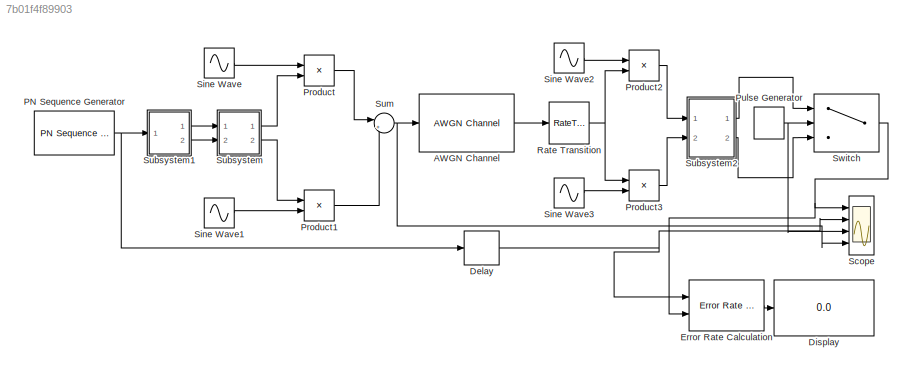
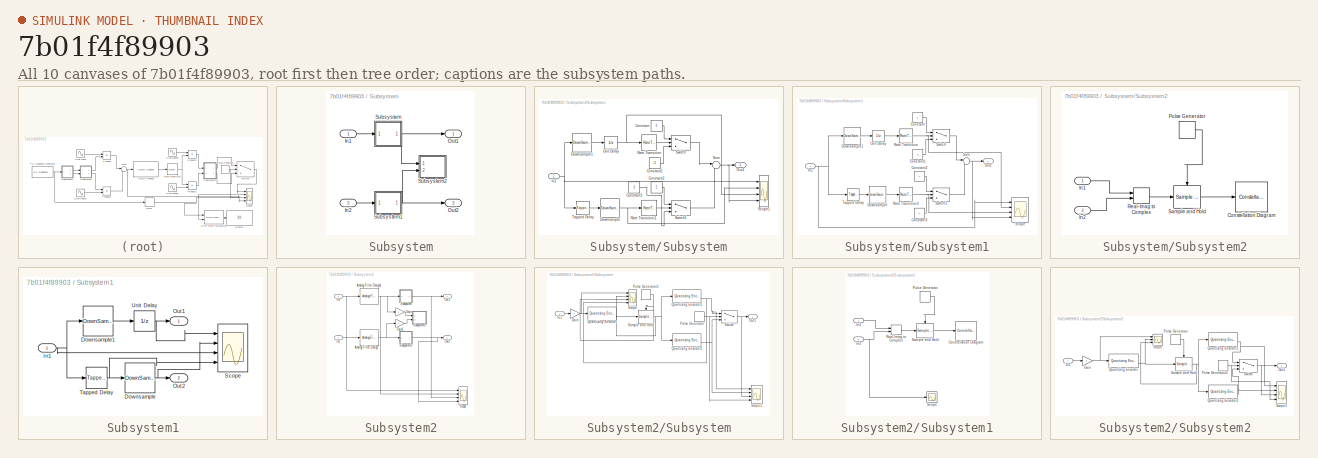
[diagram: thumbnail index - all 10 canvases of the model, root first then tree order]
MODEL slx_7b01f4f89903
KIND model
CONFIG AbsTol = auto
CONFIG FixedStep = auto
CONFIG MaxStep = auto
CONFIG MinStep = auto
CONFIG RelTol = 1e-3
CONFIG SampleTimeConstraint = Unconstrained
CONFIG Solver = VariableStepAuto
CONFIG SolverMode = Auto
CONFIG SolverName = VariableStepAuto
CONFIG StartTime = 0.0
CONFIG StopTime = 1
BLOCK [Reference] AWGN Channel  REF=commchan3/AWGN
Channel
  Ports = [1, 1]
  SourceBlock = commchan3/AWGN\nChannel
  SourceType = AWGN Channel
  UserDataPersistent = on
BLOCK [Delay] Delay
  DelayLength = 10
  InitialCondition = 0
  InputPortMap = u0
  Ports = [1, 1]
BLOCK [Display] Display
  Decimation = 1
  Ports = [1]
BLOCK [Reference] Error Rate Calculation  REF=commsink2/Error Rate
Calculation
  Ports = [2, 1]
  SourceBlock = commsink2/Error Rate\nCalculation
  SourceType = Error Rate Calculation
BLOCK [Reference] PN Sequence Generator  REF=commseqgen3/PN Sequence
Generator
  Ports = [0, 1]
  SourceBlock = commseqgen3/PN Sequence\nGenerator
  SourceType = PN Sequence Generator
BLOCK [Product] Product
  InputSameDT = off
  OutDataTypeStr = Inherit: Inherit via internal rule
  Ports = [2, 1]
  RndMeth = Floor
  SaturateOnIntegerOverflow = off
BLOCK [Product] Product1
  InputSameDT = off
  OutDataTypeStr = Inherit: Inherit via internal rule
  Ports = [2, 1]
  RndMeth = Floor
  SaturateOnIntegerOverflow = off
BLOCK [Product] Product2
  InputSameDT = off
  OutDataTypeStr = Inherit: Inherit via internal rule
  Ports = [2, 1]
  RndMeth = Floor
  SaturateOnIntegerOverflow = off
BLOCK [Product] Product3
  InputSameDT = off
  OutDataTypeStr = Inherit: Inherit via internal rule
  Ports = [2, 1]
  RndMeth = Floor
  SaturateOnIntegerOverflow = off
BLOCK [DiscretePulseGenerator] Pulse Generator
  Period = 10
  Ports = [0, 1]
  PulseWidth = 5
  SampleTime = 1/5000
BLOCK [RateTransition] Rate Transition
  OutPortSampleTime = 1/1000
  OutPortSampleTimeOpt = Multiple of input port sample time
BLOCK [Scope] Scope
  NumInputPorts = 4
  Ports = [4]
  ScopeSpecificationString = Simulink.scopes.TimeScopeBlockCfg('CurrentConfiguration', extmgr.ConfigurationSet(extmgr.Configuration('Core','General UI',true),extmgr.Configuration('Core','Source UI',true),extmgr.Configuration('Sources','WiredSimulink',true),extmgr.Configuration('Visuals','Time Domain',true,'SerializedDisplays',{struct('MinYLimReal','-0.125','MaxYLimReal','1.125','YLabelReal','','MinYLimMag','0.00000','MaxYLimM...<+3415ch>
BLOCK [Sin] Sine Wave
  Frequency = 5000*2*pi
  Phase = pi/2
  Ports = [0, 1]
  SampleTime = 1/50000
BLOCK [Sin] Sine Wave1
  Frequency = 10000*pi
  Ports = [0, 1]
  SampleTime = 1/50000
BLOCK [Sin] Sine Wave2
  Frequency = 5000*2*pi
  Phase = pi/2
  Ports = [0, 1]
  SampleTime = 1/50000
BLOCK [Sin] Sine Wave3
  Frequency = 5000*2*pi
  Ports = [0, 1]
  SampleTime = 1/50000
BLOCK [SubSystem] Subsystem
  Ports = [2, 2]
  RequestExecContextInheritance = off
  Variant = off
BLOCK [Inport] Subsystem/In1
  IconDisplay = Port number
BLOCK [Inport] Subsystem/In2
  IconDisplay = Port number
  Port = 2
BLOCK [Outport] Subsystem/Out1
  IconDisplay = Port number
BLOCK [Outport] Subsystem/Out2
  IconDisplay = Port number
  Port = 2
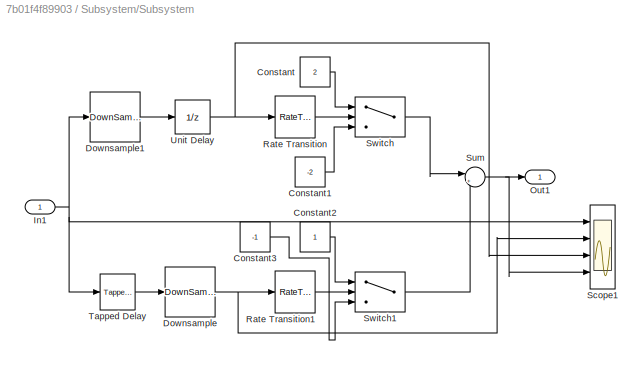
BLOCK [SubSystem] Subsystem/Subsystem
  Ports = [1, 1]
  RequestExecContextInheritance = off
  Variant = off
BLOCK [Constant] Subsystem/Subsystem/Constant
  Value = 2
BLOCK [Constant] Subsystem/Subsystem/Constant1
  Value = -2
BLOCK [Constant] Subsystem/Subsystem/Constant2
BLOCK [Constant] Subsystem/Subsystem/Constant3
  Value = -1
BLOCK [DownSample] Subsystem/Subsystem/Downsample
  InputProcessing = Elements as channels (sample based)
BLOCK [DownSample] Subsystem/Subsystem/Downsample1
  InputProcessing = Elements as channels (sample based)
BLOCK [Inport] Subsystem/Subsystem/In1
  IconDisplay = Port number
BLOCK [Outport] Subsystem/Subsystem/Out1
  IconDisplay = Port number
BLOCK [RateTransition] Subsystem/Subsystem/Rate Transition
  OutPortSampleTimeOpt = Multiple of input port sample time
BLOCK [RateTransition] Subsystem/Subsystem/Rate Transition1
  OutPortSampleTimeOpt = Multiple of input port sample time
BLOCK [Scope] Subsystem/Subsystem/Scope1
  NumInputPorts = 4
  Ports = [4]
  ScopeSpecificationString = Simulink.scopes.TimeScopeBlockCfg('CurrentConfiguration', extmgr.ConfigurationSet(extmgr.Configuration('Core','General UI',true),extmgr.Configuration('Core','Source UI',true),extmgr.Configuration('Sources','WiredSimulink',true,'DataLoggingVariableName','ScopeData5'),extmgr.Configuration('Visuals','Time Domain',true,'SerializedDisplays',{struct('MinYLimReal','-0.125','MaxYLimReal','1.125','YLabelRe...<+3466ch>
BLOCK [Sum] Subsystem/Subsystem/Sum
  IconShape = round
  InputSameDT = off
  Inputs = |++
  OutDataTypeStr = Inherit: Inherit via internal rule
  Ports = [2, 1]
  SaturateOnIntegerOverflow = off
BLOCK [Switch] Subsystem/Subsystem/Switch
  Criteria = u2 > Threshold
  InputSameDT = off
  SaturateOnIntegerOverflow = off
BLOCK [Switch] Subsystem/Subsystem/Switch1
  Criteria = u2 > Threshold
  InputSameDT = off
  SaturateOnIntegerOverflow = off
BLOCK [Reference] Subsystem/Subsystem/Tapped Delay  REF=simulink/Discrete/Tapped Delay
  Ports = [1, 1]
  SourceBlock = simulink/Discrete/Tapped Delay
  SourceType = Tapped Delay Line
BLOCK [UnitDelay] Subsystem/Subsystem/Unit Delay
  InputProcessing = Elements as channels (sample based)
  SampleTime = 1/250
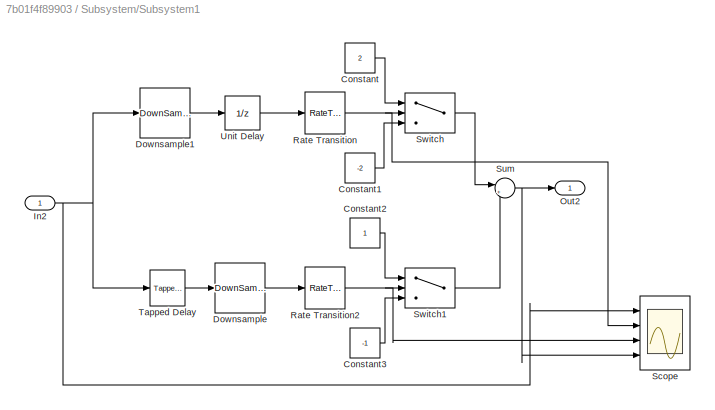
BLOCK [SubSystem] Subsystem/Subsystem1
  Ports = [1, 1]
  RequestExecContextInheritance = off
  Variant = off
BLOCK [Constant] Subsystem/Subsystem1/Constant
  Value = 2
BLOCK [Constant] Subsystem/Subsystem1/Constant1
  Value = -2
BLOCK [Constant] Subsystem/Subsystem1/Constant2
BLOCK [Constant] Subsystem/Subsystem1/Constant3
  Value = -1
BLOCK [DownSample] Subsystem/Subsystem1/Downsample
  InputProcessing = Elements as channels (sample based)
BLOCK [DownSample] Subsystem/Subsystem1/Downsample1
  InputProcessing = Elements as channels (sample based)
BLOCK [Inport] Subsystem/Subsystem1/In2
  IconDisplay = Port number
BLOCK [Outport] Subsystem/Subsystem1/Out2
  IconDisplay = Port number
BLOCK [RateTransition] Subsystem/Subsystem1/Rate Transition
  OutPortSampleTimeOpt = Multiple of input port sample time
BLOCK [RateTransition] Subsystem/Subsystem1/Rate Transition2
  OutPortSampleTimeOpt = Multiple of input port sample time
BLOCK [Scope] Subsystem/Subsystem1/Scope
  NumInputPorts = 4
  Ports = [4]
  ScopeSpecificationString = Simulink.scopes.TimeScopeBlockCfg('CurrentConfiguration', extmgr.ConfigurationSet(extmgr.Configuration('Core','General UI',true),extmgr.Configuration('Core','Source UI',true),extmgr.Configuration('Sources','WiredSimulink',true,'DataLoggingVariableName','ScopeData1'),extmgr.Configuration('Visuals','Time Domain',true,'SerializedDisplays',{struct('MinYLimReal','-0.125','MaxYLimReal','1.125','YLabelRe...<+3449ch>
BLOCK [Sum] Subsystem/Subsystem1/Sum
  IconShape = round
  InputSameDT = off
  Inputs = |++
  OutDataTypeStr = Inherit: Inherit via internal rule
  Ports = [2, 1]
  SaturateOnIntegerOverflow = off
BLOCK [Switch] Subsystem/Subsystem1/Switch
  Criteria = u2 > Threshold
  InputSameDT = off
  SaturateOnIntegerOverflow = off
BLOCK [Switch] Subsystem/Subsystem1/Switch1
  Criteria = u2 > Threshold
  InputSameDT = off
  SaturateOnIntegerOverflow = off
BLOCK [Reference] Subsystem/Subsystem1/Tapped Delay  REF=simulink/Discrete/Tapped Delay
  Ports = [1, 1]
  SourceBlock = simulink/Discrete/Tapped Delay
  SourceType = Tapped Delay Line
BLOCK [UnitDelay] Subsystem/Subsystem1/Unit Delay
  InputProcessing = Elements as channels (sample based)
  SampleTime = 1/250
BLOCK [SubSystem] Subsystem/Subsystem2
  Ports = [2]
  RequestExecContextInheritance = off
  Variant = off
BLOCK [ConstellationDiagram] Subsystem/Subsystem2/Constellation Diagram
  Ports = [1]
  ScopeSpecificationString = comm.scopes.ConstellationDiagramBlockCfg('CurrentConfiguration', extmgr.ConfigurationSet(extmgr.Configuration('Core','General UI',true),extmgr.Configuration('Core','Source UI',true),extmgr.Configuration('Sources','WiredSimulink',true),extmgr.Configuration('Sources','Simulink',false),extmgr.Configuration('Sources','SimulinkEvent',false),extmgr.Configuration('Sources','File',false),extmgr.Configurat...<+2596ch>
BLOCK [Inport] Subsystem/Subsystem2/In1
  IconDisplay = Port number
BLOCK [Inport] Subsystem/Subsystem2/In2
  IconDisplay = Port number
  Port = 2
BLOCK [DiscretePulseGenerator] Subsystem/Subsystem2/Pulse Generator
  Period = 10
  Ports = [0, 1]
  PulseWidth = 5
  SampleTime = 1/5000
BLOCK [RealImagToComplex] Subsystem/Subsystem2/Real-Imag to Complex
  Ports = [2, 1]
BLOCK [Reference] Subsystem/Subsystem2/Sample and Hold  REF=dspsigops/Sample
and Hold
  Ports = [1, 1, 0, 1]
  SourceBlock = dspsigops/Sample\nand Hold
  SourceType = Sample and Hold
BLOCK [SubSystem] Subsystem1
  Ports = [1, 2]
  RequestExecContextInheritance = off
  Variant = off
BLOCK [DownSample] Subsystem1/Downsample
  InputProcessing = Elements as channels (sample based)
BLOCK [DownSample] Subsystem1/Downsample1
  InputProcessing = Elements as channels (sample based)
  RateOptions = Allow multirate processing
BLOCK [Inport] Subsystem1/In1
  IconDisplay = Port number
BLOCK [Outport] Subsystem1/Out1
  IconDisplay = Port number
BLOCK [Outport] Subsystem1/Out2
  IconDisplay = Port number
  Port = 2
BLOCK [Scope] Subsystem1/Scope
  NumInputPorts = 4
  Ports = [4]
  ScopeSpecificationString = Simulink.scopes.TimeScopeBlockCfg('CurrentConfiguration', extmgr.ConfigurationSet(extmgr.Configuration('Core','General UI',true),extmgr.Configuration('Core','Source UI',true),extmgr.Configuration('Sources','WiredSimulink',true,'DataLoggingVariableName','ScopeData3'),extmgr.Configuration('Visuals','Time Domain',true,'SerializedDisplays',{struct('MinYLimReal','-0.125','MaxYLimReal','1.125','YLabelRe...<+3477ch>
BLOCK [Reference] Subsystem1/Tapped Delay  REF=simulink/Discrete/Tapped Delay
  Ports = [1, 1]
  SourceBlock = simulink/Discrete/Tapped Delay
  SourceType = Tapped Delay Line
BLOCK [UnitDelay] Subsystem1/Unit Delay
  InputProcessing = Elements as channels (sample based)
  SampleTime = 1/500
BLOCK [SubSystem] Subsystem2
  Ports = [2, 2]
  RequestExecContextInheritance = off
  Variant = off
BLOCK [Reference] Subsystem2/Analog Filter Design  REF=dsparch4/Analog
Filter Design
  Ports = [1, 1]
  SourceBlock = dsparch4/Analog\nFilter Design
  SourceType = Analog Filter Design
BLOCK [Reference] Subsystem2/Analog Filter Design1  REF=dsparch4/Analog
Filter Design
  Ports = [1, 1]
  SourceBlock = dsparch4/Analog\nFilter Design
  SourceType = Analog Filter Design
BLOCK [Gain] Subsystem2/Gain
  Gain = 2
  OutDataTypeStr = Inherit: Inherit via internal rule
  ParamDataTypeStr = Inherit: Inherit via internal rule
  SaturateOnIntegerOverflow = off
BLOCK [Gain] Subsystem2/Gain1
  Gain = 2
  OutDataTypeStr = Inherit: Inherit via internal rule
  ParamDataTypeStr = Inherit: Inherit via internal rule
  SaturateOnIntegerOverflow = off
BLOCK [Inport] Subsystem2/In1
  IconDisplay = Port number
BLOCK [Inport] Subsystem2/In2
  IconDisplay = Port number
  Port = 2
BLOCK [Outport] Subsystem2/Out1
  IconDisplay = Port number
BLOCK [Outport] Subsystem2/Out2
  IconDisplay = Port number
  Port = 2
BLOCK [Scope] Subsystem2/Scope
  NumInputPorts = 4
  Ports = [4]
  ScopeSpecificationString = Simulink.scopes.TimeScopeBlockCfg('CurrentConfiguration', extmgr.ConfigurationSet(extmgr.Configuration('Core','General UI',true),extmgr.Configuration('Core','Source UI',true),extmgr.Configuration('Sources','WiredSimulink',true,'DataLoggingVariableName','ScopeData5'),extmgr.Configuration('Visuals','Time Domain',true,'SerializedDisplays',{struct('MinYLimReal','-5.89974','MaxYLimReal','5.69351','YLab...<+3541ch>
BLOCK [SubSystem] Subsystem2/Subsystem
  Ports = [1, 1]
  RequestExecContextInheritance = off
  Variant = off
BLOCK [Gain] Subsystem2/Subsystem/Gain
  Gain = 2
  OutDataTypeStr = Inherit: Inherit via internal rule
  ParamDataTypeStr = Inherit: Inherit via internal rule
  SaturateOnIntegerOverflow = off
BLOCK [Inport] Subsystem2/Subsystem/In1
  IconDisplay = Port number
BLOCK [Outport] Subsystem2/Subsystem/Out1
  IconDisplay = Port number
BLOCK [DiscretePulseGenerator] Subsystem2/Subsystem/Pulse Generator
  Period = 10
  Ports = [0, 1]
  PulseWidth = 5
  SampleTime = 1/2500
BLOCK [DiscretePulseGenerator] Subsystem2/Subsystem/Pulse Generator1
  Period = 10
  Ports = [0, 1]
  PulseWidth = 5
  SampleTime = 1/2500
BLOCK [Reference] Subsystem2/Subsystem/Quantizing Encoder  REF=commsrccod2/Quantizing
Encoder
  Ports = [1, 2]
  SourceBlock = commsrccod2/Quantizing\nEncoder
  SourceType = Quantizing Encoder
BLOCK [Reference] Subsystem2/Subsystem/Quantizing Encoder1  REF=commsrccod2/Quantizing
Encoder
  Ports = [1, 2]
  SourceBlock = commsrccod2/Quantizing\nEncoder
  SourceType = Quantizing Encoder
BLOCK [Reference] Subsystem2/Subsystem/Quantizing Encoder2  REF=commsrccod2/Quantizing
Encoder
  Ports = [1, 2]
  SourceBlock = commsrccod2/Quantizing\nEncoder
  SourceType = Quantizing Encoder
BLOCK [Reference] Subsystem2/Subsystem/Sample and Hold  REF=dspsigops/Sample
and Hold
  Ports = [1, 1, 0, 1]
  SourceBlock = dspsigops/Sample\nand Hold
  SourceType = Sample and Hold
BLOCK [Scope] Subsystem2/Subsystem/Scope
  NumInputPorts = 4
  Ports = [4]
  ScopeSpecificationString = Simulink.scopes.TimeScopeBlockCfg('CurrentConfiguration', extmgr.ConfigurationSet(extmgr.Configuration('Core','General UI',true),extmgr.Configuration('Core','Source UI',true),extmgr.Configuration('Sources','WiredSimulink',true,'DataLoggingVariableName','ScopeData2'),extmgr.Configuration('Visuals','Time Domain',true,'SerializedDisplays',{struct('MinYLimReal','-4.22221','MaxYLimReal','4.31947','YLab...<+3508ch>
BLOCK [Scope] Subsystem2/Subsystem/Scope1
  NumInputPorts = 4
  Ports = [4]
  ScopeSpecificationString = Simulink.scopes.TimeScopeBlockCfg('CurrentConfiguration', extmgr.ConfigurationSet(extmgr.Configuration('Core','General UI',true),extmgr.Configuration('Core','Source UI',true),extmgr.Configuration('Sources','WiredSimulink',true,'DataLoggingVariableName','ScopeData2'),extmgr.Configuration('Visuals','Time Domain',true,'SerializedDisplays',{struct('MinYLimReal','-0.125','MaxYLimReal','1.125','YLabelRe...<+3434ch>
BLOCK [Switch] Subsystem2/Subsystem/Switch
  Criteria = u2 > Threshold
  InputSameDT = off
  OutDataTypeStr = double
  SaturateOnIntegerOverflow = off
BLOCK [SubSystem] Subsystem2/Subsystem1
  Ports = [2]
  RequestExecContextInheritance = off
  Variant = off
BLOCK [ConstellationDiagram] Subsystem2/Subsystem1/Constellation Diagram
  Ports = [1]
  ScopeSpecificationString = comm.scopes.ConstellationDiagramBlockCfg('CurrentConfiguration', extmgr.ConfigurationSet(extmgr.Configuration('Core','General UI',true),extmgr.Configuration('Core','Source UI',true),extmgr.Configuration('Sources','WiredSimulink',true),extmgr.Configuration('Sources','Simulink',false),extmgr.Configuration('Sources','SimulinkEvent',false),extmgr.Configuration('Sources','File',false),extmgr.Configurat...<+2596ch>
BLOCK [Inport] Subsystem2/Subsystem1/In1
  IconDisplay = Port number
BLOCK [Inport] Subsystem2/Subsystem1/In2
  IconDisplay = Port number
  Port = 2
BLOCK [DiscretePulseGenerator] Subsystem2/Subsystem1/Pulse Generator
  Period = 10
  Ports = [0, 1]
  PulseWidth = 5
  SampleTime = 1/5000
BLOCK [RealImagToComplex] Subsystem2/Subsystem1/Real-Imag to Complex
  Ports = [2, 1]
BLOCK [Reference] Subsystem2/Subsystem1/Sample and Hold  REF=dspsigops/Sample
and Hold
  Ports = [1, 1, 0, 1]
  SourceBlock = dspsigops/Sample\nand Hold
  SourceType = Sample and Hold
BLOCK [Scope] Subsystem2/Subsystem1/Scope
  Ports = [1]
  ScopeSpecificationString = Simulink.scopes.TimeScopeBlockCfg('CurrentConfiguration', extmgr.ConfigurationSet(extmgr.Configuration('Core','General UI',true),extmgr.Configuration('Core','Source UI',true),extmgr.Configuration('Sources','WiredSimulink',true,'DataLoggingVariableName','ScopeData6'),extmgr.Configuration('Visuals','Time Domain',true,'SerializedDisplays',{struct('MinYLimReal','-2.17529','MaxYLimReal','2.18586','YLab...<+1381ch>
BLOCK [SubSystem] Subsystem2/Subsystem2
  Ports = [1, 1]
  RequestExecContextInheritance = off
  Variant = off
BLOCK [Gain] Subsystem2/Subsystem2/Gain
  Gain = 2
  OutDataTypeStr = Inherit: Inherit via internal rule
  ParamDataTypeStr = Inherit: Inherit via internal rule
  SaturateOnIntegerOverflow = off
BLOCK [Inport] Subsystem2/Subsystem2/In1
  IconDisplay = Port number
BLOCK [Outport] Subsystem2/Subsystem2/Out1
  IconDisplay = Port number
BLOCK [DiscretePulseGenerator] Subsystem2/Subsystem2/Pulse Generator
  Period = 10
  Ports = [0, 1]
  PulseWidth = 5
  SampleTime = 1/2500
BLOCK [DiscretePulseGenerator] Subsystem2/Subsystem2/Pulse Generator1
  Period = 10
  Ports = [0, 1]
  PulseWidth = 5
  SampleTime = 1/2500
BLOCK [Reference] Subsystem2/Subsystem2/Quantizing Encoder  REF=commsrccod2/Quantizing
Encoder
  Ports = [1, 2]
  SourceBlock = commsrccod2/Quantizing\nEncoder
  SourceType = Quantizing Encoder
BLOCK [Reference] Subsystem2/Subsystem2/Quantizing Encoder1  REF=commsrccod2/Quantizing
Encoder
  Ports = [1, 2]
  SourceBlock = commsrccod2/Quantizing\nEncoder
  SourceType = Quantizing Encoder
BLOCK [Reference] Subsystem2/Subsystem2/Quantizing Encoder2  REF=commsrccod2/Quantizing
Encoder
  Ports = [1, 2]
  SourceBlock = commsrccod2/Quantizing\nEncoder
  SourceType = Quantizing Encoder
BLOCK [Reference] Subsystem2/Subsystem2/Sample and Hold  REF=dspsigops/Sample
and Hold
  Ports = [1, 1, 0, 1]
  SourceBlock = dspsigops/Sample\nand Hold
  SourceType = Sample and Hold
BLOCK [Scope] Subsystem2/Subsystem2/Scope
  NumInputPorts = 3
  Ports = [3]
  ScopeSpecificationString = Simulink.scopes.TimeScopeBlockCfg('CurrentConfiguration', extmgr.ConfigurationSet(extmgr.Configuration('Core','General UI',true),extmgr.Configuration('Core','Source UI',true),extmgr.Configuration('Sources','WiredSimulink',true,'DataLoggingVariableName','ScopeData3'),extmgr.Configuration('Visuals','Time Domain',true,'SerializedDisplays',{struct('MinYLimReal','-4.35196','MaxYLimReal','4.38416','YLab...<+2701ch>
BLOCK [Scope] Subsystem2/Subsystem2/Scope1
  NumInputPorts = 4
  Ports = [4]
  ScopeSpecificationString = Simulink.scopes.TimeScopeBlockCfg('CurrentConfiguration', extmgr.ConfigurationSet(extmgr.Configuration('Core','General UI',true),extmgr.Configuration('Core','Source UI',true),extmgr.Configuration('Sources','WiredSimulink',true,'DataLoggingVariableName','ScopeData4'),extmgr.Configuration('Visuals','Time Domain',true,'SerializedDisplays',{struct('MinYLimReal','-0.125','MaxYLimReal','1.125','YLabelRe...<+3437ch>
BLOCK [Switch] Subsystem2/Subsystem2/Switch
  Criteria = u2 > Threshold
  InputSameDT = off
  SaturateOnIntegerOverflow = off
BLOCK [Sum] Sum
  AccumDataTypeStr = double
  IconShape = round
  InputSameDT = off
  Inputs = |++
  OutDataTypeStr = double
  Ports = [2, 1]
  SaturateOnIntegerOverflow = off
BLOCK [Switch] Switch
  InputSameDT = off
  SaturateOnIntegerOverflow = off
  Threshold = 0.5
LINE AWGN Channel:1 -> Rate Transition:1
NET Delay:1 -> Error Rate Calculation:1, Scope:2
LINE Error Rate Calculation:1 -> Display:1
NET PN Sequence Generator:1 -> Delay:1, Subsystem1:1
LINE Product1:1 -> Sum:2
LINE Product2:1 -> Subsystem2:1
LINE Product3:1 -> Subsystem2:2
LINE Product:1 -> Sum:1
NET Pulse Generator:1 -> Scope:3, Switch:2
NET Rate Transition:1 -> Product2:2, Product3:1
LINE Sine Wave1:1 -> Product1:2
LINE Sine Wave2:1 -> Product2:1
LINE Sine Wave3:1 -> Product3:2
LINE Sine Wave:1 -> Product:1
LINE Subsystem/In1:1 -> Subsystem/Subsystem:1
LINE Subsystem/In2:1 -> Subsystem/Subsystem1:1
LINE Subsystem/Subsystem/Constant1:1 -> Subsystem/Subsystem/Switch:3
LINE Subsystem/Subsystem/Constant2:1 -> Subsystem/Subsystem/Switch1:1
LINE Subsystem/Subsystem/Constant3:1 -> Subsystem/Subsystem/Switch1:3
LINE Subsystem/Subsystem/Constant:1 -> Subsystem/Subsystem/Switch:1
LINE Subsystem/Subsystem/Downsample1:1 -> Subsystem/Subsystem/Unit Delay:1
NET Subsystem/Subsystem/Downsample:1 -> Subsystem/Subsystem/Rate Transition1:1, Subsystem/Subsystem/Scope1:2
NET Subsystem/Subsystem/In1:1 -> Subsystem/Subsystem/Downsample1:1, Subsystem/Subsystem/Scope1:1, Subsystem/Subsystem/Tapped Delay:1
LINE Subsystem/Subsystem/Rate Transition1:1 -> Subsystem/Subsystem/Switch1:2
LINE Subsystem/Subsystem/Rate Transition:1 -> Subsystem/Subsystem/Switch:2
NET Subsystem/Subsystem/Sum:1 -> Subsystem/Subsystem/Out1:1, Subsystem/Subsystem/Scope1:4
LINE Subsystem/Subsystem/Switch1:1 -> Subsystem/Subsystem/Sum:2
LINE Subsystem/Subsystem/Switch:1 -> Subsystem/Subsystem/Sum:1
LINE Subsystem/Subsystem/Tapped Delay:1 -> Subsystem/Subsystem/Downsample:1
NET Subsystem/Subsystem/Unit Delay:1 -> Subsystem/Subsystem/Rate Transition:1, Subsystem/Subsystem/Scope1:3
LINE Subsystem/Subsystem1/Constant1:1 -> Subsystem/Subsystem1/Switch:3
LINE Subsystem/Subsystem1/Constant2:1 -> Subsystem/Subsystem1/Switch1:1
LINE Subsystem/Subsystem1/Constant3:1 -> Subsystem/Subsystem1/Switch1:3
LINE Subsystem/Subsystem1/Constant:1 -> Subsystem/Subsystem1/Switch:1
LINE Subsystem/Subsystem1/Downsample1:1 -> Subsystem/Subsystem1/Unit Delay:1
LINE Subsystem/Subsystem1/Downsample:1 -> Subsystem/Subsystem1/Rate Transition2:1
NET Subsystem/Subsystem1/In2:1 -> Subsystem/Subsystem1/Downsample1:1, Subsystem/Subsystem1/Scope:1, Subsystem/Subsystem1/Tapped Delay:1
NET Subsystem/Subsystem1/Rate Transition2:1 -> Subsystem/Subsystem1/Scope:3, Subsystem/Subsystem1/Switch1:2
NET Subsystem/Subsystem1/Rate Transition:1 -> Subsystem/Subsystem1/Scope:2, Subsystem/Subsystem1/Switch:2
NET Subsystem/Subsystem1/Sum:1 -> Subsystem/Subsystem1/Out2:1, Subsystem/Subsystem1/Scope:4
LINE Subsystem/Subsystem1/Switch1:1 -> Subsystem/Subsystem1/Sum:2
LINE Subsystem/Subsystem1/Switch:1 -> Subsystem/Subsystem1/Sum:1
LINE Subsystem/Subsystem1/Tapped Delay:1 -> Subsystem/Subsystem1/Downsample:1
LINE Subsystem/Subsystem1/Unit Delay:1 -> Subsystem/Subsystem1/Rate Transition:1
NET Subsystem/Subsystem1:1 -> Subsystem/Out2:1, Subsystem/Subsystem2:2
LINE Subsystem/Subsystem2/In1:1 -> Subsystem/Subsystem2/Real-Imag to Complex:1
LINE Subsystem/Subsystem2/In2:1 -> Subsystem/Subsystem2/Real-Imag to Complex:2
LINE Subsystem/Subsystem2/Pulse Generator:1 -> Subsystem/Subsystem2/Sample and Hold:trigger
LINE Subsystem/Subsystem2/Real-Imag to Complex:1 -> Subsystem/Subsystem2/Sample and Hold:1
LINE Subsystem/Subsystem2/Sample and Hold:1 -> Subsystem/Subsystem2/Constellation Diagram:1
NET Subsystem/Subsystem:1 -> Subsystem/Out1:1, Subsystem/Subsystem2:1
LINE Subsystem1/Downsample1:1 -> Subsystem1/Unit Delay:1
NET Subsystem1/Downsample:1 -> Subsystem1/Out2:1, Subsystem1/Scope:2
NET Subsystem1/In1:1 -> Subsystem1/Downsample1:1, Subsystem1/Scope:3, Subsystem1/Tapped Delay:1
NET Subsystem1/Tapped Delay:1 -> Subsystem1/Downsample:1, Subsystem1/Scope:4
NET Subsystem1/Unit Delay:1 -> Subsystem1/Out1:1, Subsystem1/Scope:1
LINE Subsystem1:1 -> Subsystem:1
LINE Subsystem1:2 -> Subsystem:2
NET Subsystem2/Analog Filter Design1:1 -> Subsystem2/Gain:1, Subsystem2/Scope:2, Subsystem2/Subsystem:1
NET Subsystem2/Analog Filter Design:1 -> Subsystem2/Gain1:1, Subsystem2/Subsystem2:1
LINE Subsystem2/Gain1:1 -> Subsystem2/Subsystem1:2
LINE Subsystem2/Gain:1 -> Subsystem2/Subsystem1:1
NET Subsystem2/In1:1 -> Subsystem2/Analog Filter Design1:1, Subsystem2/Scope:1
LINE Subsystem2/In2:1 -> Subsystem2/Analog Filter Design:1
NET Subsystem2/Subsystem/Gain:1 -> Subsystem2/Subsystem/Quantizing Encoder:1, Subsystem2/Subsystem/Scope:1
LINE Subsystem2/Subsystem/In1:1 -> Subsystem2/Subsystem/Gain:1
NET Subsystem2/Subsystem/Pulse Generator1:1 -> Subsystem2/Subsystem/Sample and Hold:trigger, Subsystem2/Subsystem/Scope:3
NET Subsystem2/Subsystem/Pulse Generator:1 -> Subsystem2/Subsystem/Scope1:4, Subsystem2/Subsystem/Switch:2
NET Subsystem2/Subsystem/Quantizing Encoder1:2 -> Subsystem2/Subsystem/Scope1:1, Subsystem2/Subsystem/Scope:4, Subsystem2/Subsystem/Switch:1
NET Subsystem2/Subsystem/Quantizing Encoder2:2 -> Subsystem2/Subsystem/Scope1:2, Subsystem2/Subsystem/Switch:3
LINE Subsystem2/Subsystem/Quantizing Encoder:2 -> Subsystem2/Subsystem/Sample and Hold:1
NET Subsystem2/Subsystem/Sample and Hold:1 -> Subsystem2/Subsystem/Quantizing Encoder1:1, Subsystem2/Subsystem/Quantizing Encoder2:1, Subsystem2/Subsystem/Scope:2
NET Subsystem2/Subsystem/Switch:1 -> Subsystem2/Subsystem/Out1:1, Subsystem2/Subsystem/Scope1:3
LINE Subsystem2/Subsystem1/In1:1 -> Subsystem2/Subsystem1/Real-Imag to Complex:1
NET Subsystem2/Subsystem1/In2:1 -> Subsystem2/Subsystem1/Real-Imag to Complex:2, Subsystem2/Subsystem1/Scope:1
LINE Subsystem2/Subsystem1/Pulse Generator:1 -> Subsystem2/Subsystem1/Sample and Hold:trigger
LINE Subsystem2/Subsystem1/Real-Imag to Complex:1 -> Subsystem2/Subsystem1/Sample and Hold:1
LINE Subsystem2/Subsystem1/Sample and Hold:1 -> Subsystem2/Subsystem1/Constellation Diagram:1
NET Subsystem2/Subsystem2/Gain:1 -> Subsystem2/Subsystem2/Quantizing Encoder:1, Subsystem2/Subsystem2/Scope:1
LINE Subsystem2/Subsystem2/In1:1 -> Subsystem2/Subsystem2/Gain:1
NET Subsystem2/Subsystem2/Pulse Generator1:1 -> Subsystem2/Subsystem2/Scope1:4, Subsystem2/Subsystem2/Switch:2
LINE Subsystem2/Subsystem2/Pulse Generator:1 -> Subsystem2/Subsystem2/Sample and Hold:trigger
NET Subsystem2/Subsystem2/Quantizing Encoder1:2 -> Subsystem2/Subsystem2/Scope1:1, Subsystem2/Subsystem2/Switch:1
NET Subsystem2/Subsystem2/Quantizing Encoder2:2 -> Subsystem2/Subsystem2/Scope1:2, Subsystem2/Subsystem2/Switch:3
NET Subsystem2/Subsystem2/Quantizing Encoder:2 -> Subsystem2/Subsystem2/Sample and Hold:1, Subsystem2/Subsystem2/Scope:2
NET Subsystem2/Subsystem2/Sample and Hold:1 -> Subsystem2/Subsystem2/Quantizing Encoder1:1, Subsystem2/Subsystem2/Quantizing Encoder2:1, Subsystem2/Subsystem2/Scope:3
NET Subsystem2/Subsystem2/Switch:1 -> Subsystem2/Subsystem2/Out1:1, Subsystem2/Subsystem2/Scope1:3
NET Subsystem2/Subsystem2:1 -> Subsystem2/Out2:1, Subsystem2/Scope:4
NET Subsystem2/Subsystem:1 -> Subsystem2/Out1:1, Subsystem2/Scope:3
LINE Subsystem2:1 -> Switch:1
LINE Subsystem2:2 -> Switch:3
LINE Subsystem:1 -> Product:2
LINE Subsystem:2 -> Product1:1
NET Sum:1 -> AWGN Channel:1, Scope:4
NET Switch:1 -> Error Rate Calculation:2, Scope:1
note: NET lines group one-source signal fan-out (src -> all destinations, sorted); 1:1 wires keep LINE
